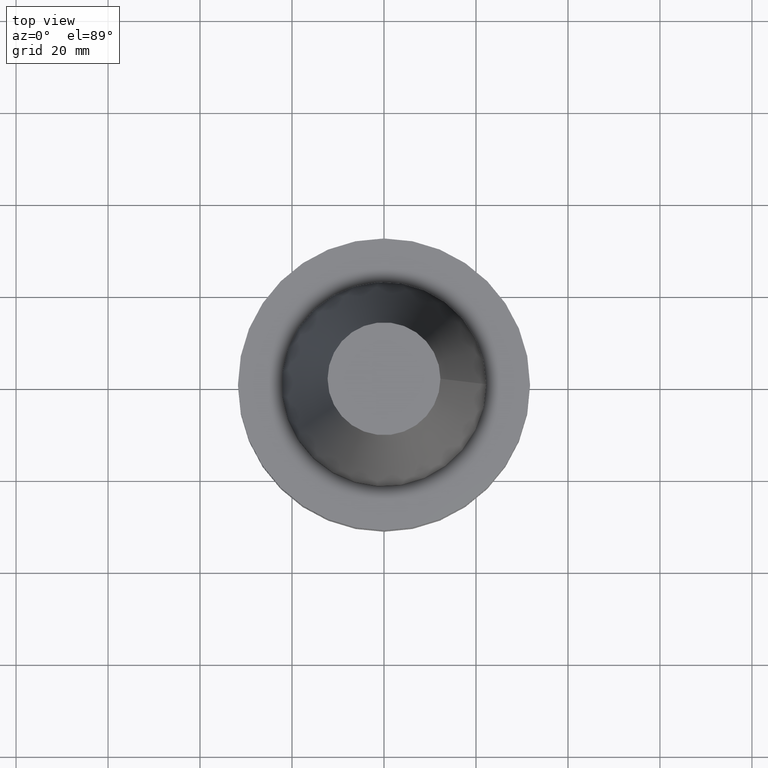
[diagram: clean part render]
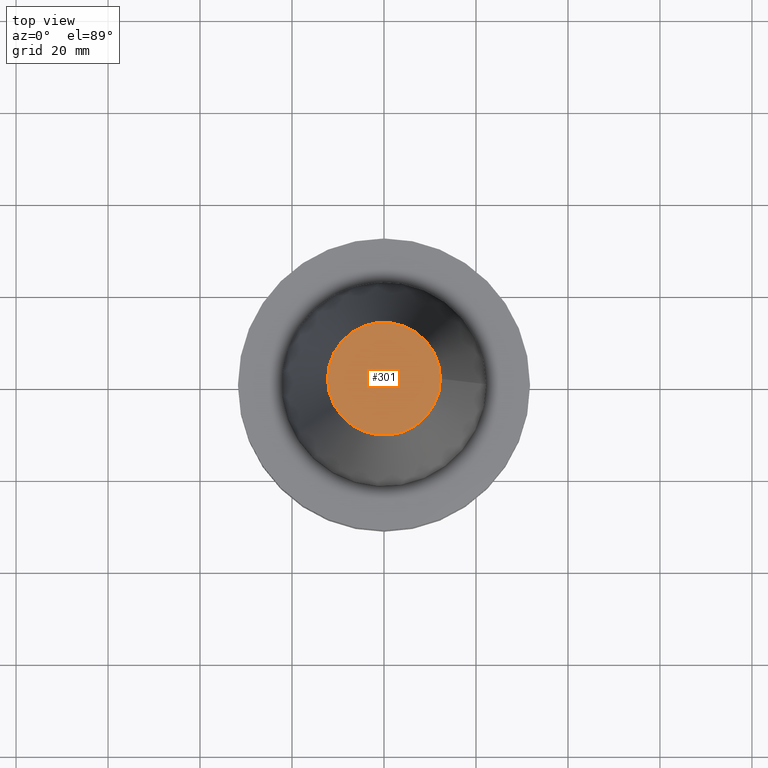
[diagram: same view with one face highlighted and labeled with its STEP entity id]
A machine part, top view. The second image highlights one B-rep face of the part: STEP entity #301.
In plain terms, the highlighted planar face has unit normal (0, 0, -1).
Its self-contained STEP definition (entity closure, byte-faithful):
#40 = CARTESIAN_POINT ( 'NONE',  ( 0.000000000000000000, 12.27178102086201150, 68.25000000000000000 ) ) ;
#57 = ORIENTED_EDGE ( 'NONE', *, *, #351, .T. ) ;
#70 = DIRECTION ( 'NONE',  ( -0.000000000000000000, -0.000000000000000000, 1.000000000000000000 ) ) ;
#102 = DIRECTION ( 'NONE',  ( 1.000000000000000000, 0.000000000000000000, 0.000000000000000000 ) ) ;
#189 = CARTESIAN_POINT ( 'NONE',  ( 0.000000000000000000, 0.000000000000000000, 68.25000000000000000 ) ) ;
#199 = VERTEX_POINT ( 'NONE', #299 ) ;
#220 = AXIS2_PLACEMENT_3D ( 'NONE', #189, #70, #102 ) ;
#248 = CIRCLE ( 'NONE', #220, 12.27178102086201150 ) ;
#255 = PLANE ( 'NONE',  #314 ) ;
#299 = CARTESIAN_POINT ( 'NONE',  ( 12.27178102086201150, 0.000000000000000000, 68.25000000000000000 ) ) ;
#301 = ADVANCED_FACE ( 'NONE', ( #343 ), #255, .F. ) ;
#314 = AXIS2_PLACEMENT_3D ( 'NONE', #40, #375, #378 ) ;
#343 = FACE_OUTER_BOUND ( 'NONE', #381, .T. ) ;
#351 = EDGE_CURVE ( 'NONE', #199, #199, #248, .T. ) ;
#375 = DIRECTION ( 'NONE',  ( 0.000000000000000000, 0.000000000000000000, -1.000000000000000000 ) ) ;
#378 = DIRECTION ( 'NONE',  ( -1.000000000000000000, 0.000000000000000000, -0.000000000000000000 ) ) ;
#381 = EDGE_LOOP ( 'NONE', ( #57 ) ) ;